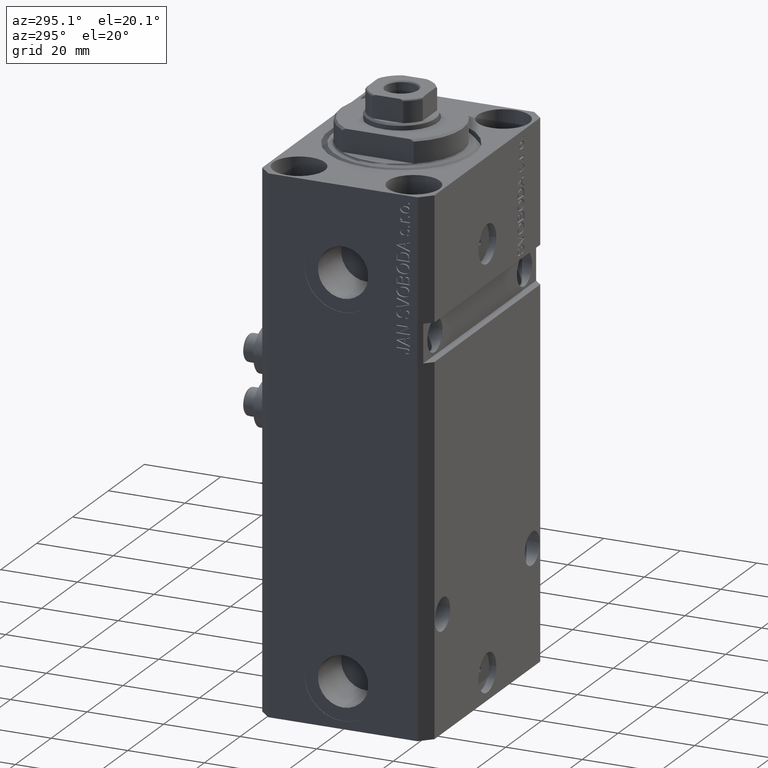
[diagram: clean part render]
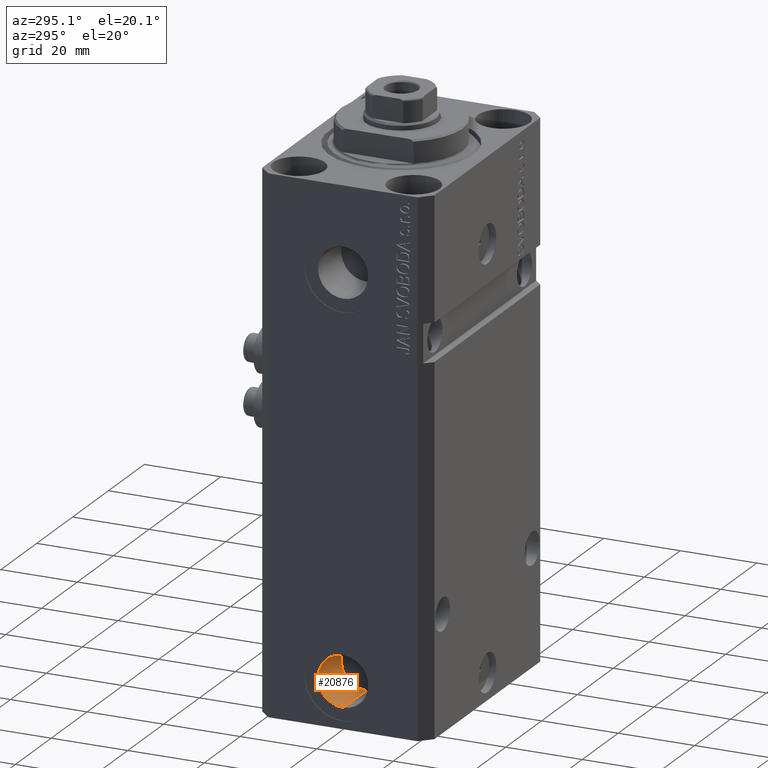
[diagram: same view with one face highlighted and labeled with its STEP entity id]
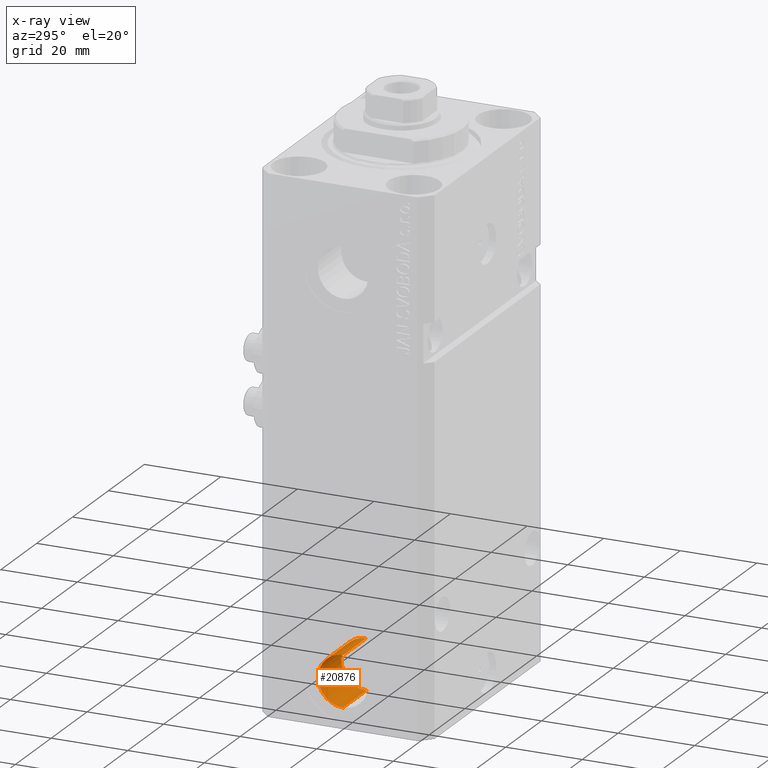
[diagram: x-ray of the same camera — body ghosted, the highlighted face saturated]
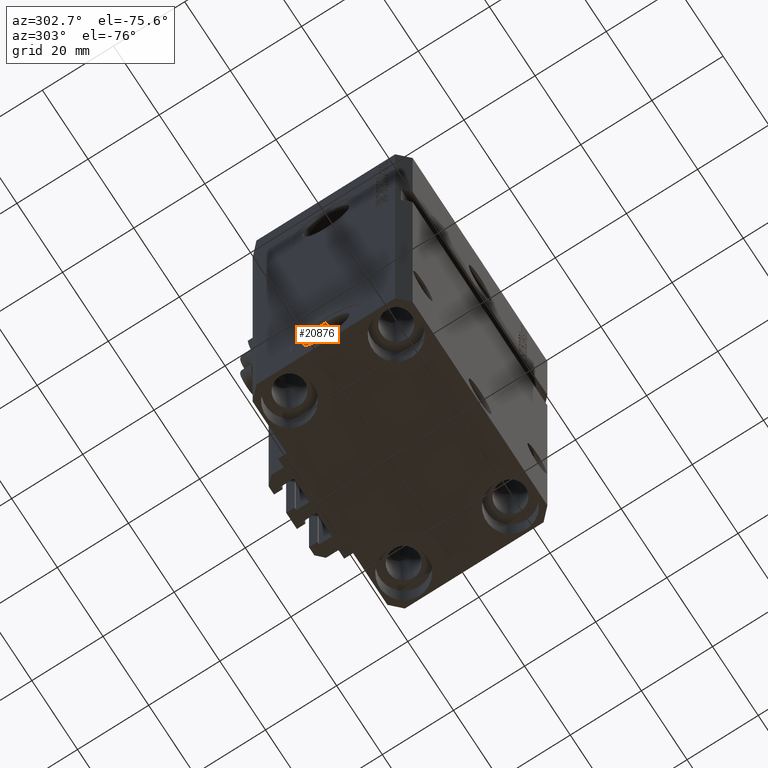
[diagram: same view with one face highlighted and labeled with its STEP entity id]
A machine part, auxiliary view. The second image highlights one B-rep face of the part: STEP entity #20876.
The next image is the same camera in x-ray: the body ghosted, the highlighted face saturated — about 0% of this face is hidden behind the body in this view.
A second angle (auxiliary view) of the same face is appended — the face is thin or edge-on in the first view.
In plain terms, the highlighted cylindrical surface (edge-blend (fillet) strip) has radius 6.58 mm, axis along (-1, -0, -0).
Its self-contained STEP definition (entity closure, byte-faithful):
#1125 = DIRECTION ( 'NONE',  ( 0.000000000000000000, 0.000000000000000000, 1.000000000000000000 ) ) ;
#1907 = FACE_OUTER_BOUND ( 'NONE', #30052, .T. ) ;
#2367 = VERTEX_POINT ( 'NONE', #29632 ) ;
#3537 = ORIENTED_EDGE ( 'NONE', *, *, #15615, .F. ) ;
#4740 = AXIS2_PLACEMENT_3D ( 'NONE', #37696, #27440, #1125 ) ;
#5516 = VERTEX_POINT ( 'NONE', #46783 ) ;
#7933 = EDGE_CURVE ( 'NONE', #34606, #33911, #41321, .T. ) ;
#9227 = DIRECTION ( 'NONE',  ( -1.000000000000000000, -0.000000000000000000, -0.000000000000000000 ) ) ;
#10819 = CARTESIAN_POINT ( 'NONE',  ( -19.39999999999650271, -1.450226739550295657E-14, -131.5800000000000125 ) ) ;
#13354 = CARTESIAN_POINT ( 'NONE',  ( -19.39999999999650271, -1.530808498934191561E-14, -125.0000000000000000 ) ) ;
#13829 = CIRCLE ( 'NONE', #20058, 6.580000000000002736 ) ;
#15615 = EDGE_CURVE ( 'NONE', #33911, #5516, #44910, .T. ) ;
#16757 = CYLINDRICAL_SURFACE ( 'NONE', #22166, 6.580000000000002736 ) ;
#17897 = CARTESIAN_POINT ( 'NONE',  ( -32.39999999999650271, -1.530808498934191561E-14, -125.0000000000000000 ) ) ;
#18899 = CARTESIAN_POINT ( 'NONE',  ( -19.39999999999650271, -1.530808498934191561E-14, -118.4200000000000017 ) ) ;
#19116 = ORIENTED_EDGE ( 'NONE', *, *, #7933, .F. ) ;
#20058 = AXIS2_PLACEMENT_3D ( 'NONE', #17897, #40578, #32300 ) ;
#20125 = CARTESIAN_POINT ( 'NONE',  ( -19.39999999999650271, -1.530808498934191561E-14, -118.4200000000000017 ) ) ;
#20876 = ADVANCED_FACE ( 'NONE', ( #1907 ), #16757, .F. ) ;
#21626 = VECTOR ( 'NONE', #42080, 1000.000000000000000 ) ;
#22105 = VECTOR ( 'NONE', #9227, 1000.000000000000000 ) ;
#22166 = AXIS2_PLACEMENT_3D ( 'NONE', #13354, #31637, #28218 ) ;
#27440 = DIRECTION ( 'NONE',  ( -1.000000000000000000, 0.000000000000000000, 0.000000000000000000 ) ) ;
#28163 = LINE ( 'NONE', #20125, #21626 ) ;
#28218 = DIRECTION ( 'NONE',  ( 0.000000000000000000, 0.000000000000000000, 1.000000000000000000 ) ) ;
#29632 = CARTESIAN_POINT ( 'NONE',  ( -32.39999999999650271, -1.530808498934191561E-14, -118.4200000000000017 ) ) ;
#30052 = EDGE_LOOP ( 'NONE', ( #3537, #19116, #32769, #30625 ) ) ;
#30625 = ORIENTED_EDGE ( 'NONE', *, *, #42952, .T. ) ;
#31637 = DIRECTION ( 'NONE',  ( -1.000000000000000000, -0.000000000000000000, -0.000000000000000000 ) ) ;
#32300 = DIRECTION ( 'NONE',  ( 0.000000000000000000, 0.000000000000000000, 1.000000000000000000 ) ) ;
#32769 = ORIENTED_EDGE ( 'NONE', *, *, #42893, .T. ) ;
#33911 = VERTEX_POINT ( 'NONE', #10819 ) ;
#34403 = CARTESIAN_POINT ( 'NONE',  ( -19.39999999999650271, -1.450226739550295657E-14, -131.5800000000000125 ) ) ;
#34606 = VERTEX_POINT ( 'NONE', #18899 ) ;
#37696 = CARTESIAN_POINT ( 'NONE',  ( -19.39999999999650271, -1.530808498934191561E-14, -125.0000000000000000 ) ) ;
#40578 = DIRECTION ( 'NONE',  ( -1.000000000000000000, 0.000000000000000000, 0.000000000000000000 ) ) ;
#41321 = CIRCLE ( 'NONE', #4740, 6.580000000000002736 ) ;
#42080 = DIRECTION ( 'NONE',  ( -1.000000000000000000, -0.000000000000000000, -0.000000000000000000 ) ) ;
#42893 = EDGE_CURVE ( 'NONE', #34606, #2367, #28163, .T. ) ;
#42952 = EDGE_CURVE ( 'NONE', #2367, #5516, #13829, .T. ) ;
#44910 = LINE ( 'NONE', #34403, #22105 ) ;
#46783 = CARTESIAN_POINT ( 'NONE',  ( -32.39999999999650271, -1.450226739550295657E-14, -131.5800000000000125 ) ) ;